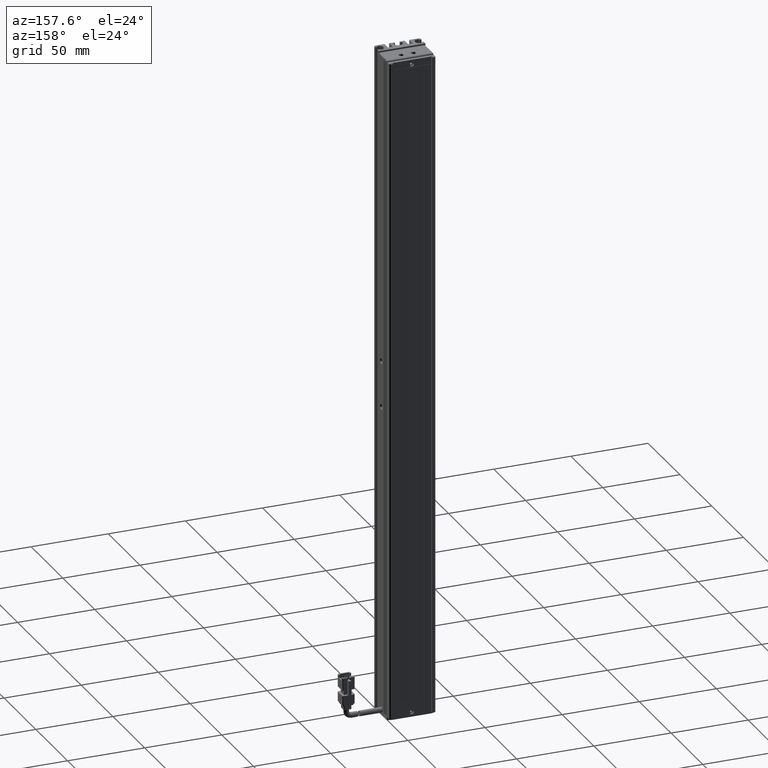
[diagram: clean part render]
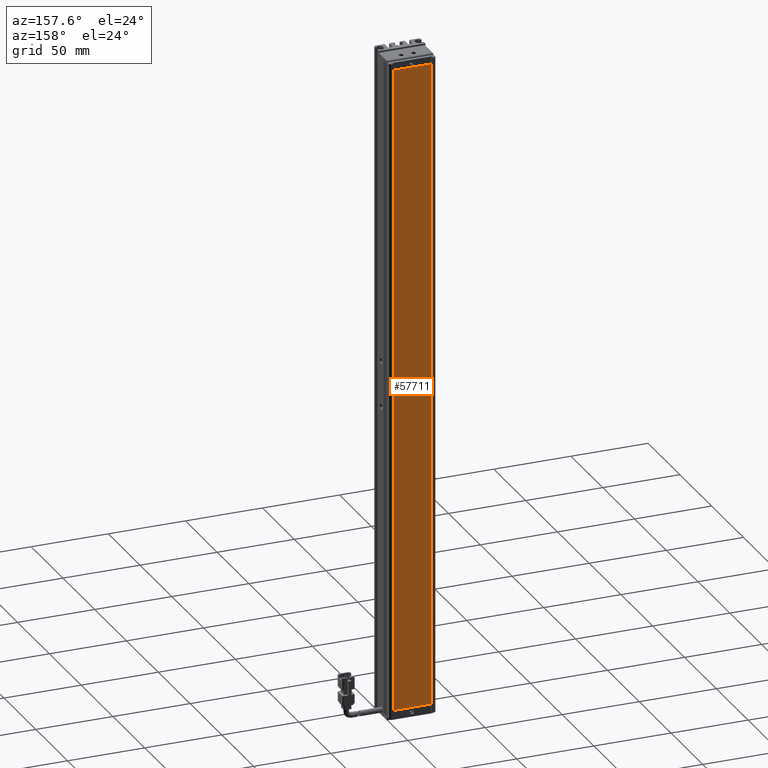
[diagram: same view with one face highlighted and labeled with its STEP entity id]
A machine part, auxiliary view. The second image highlights one B-rep face of the part: STEP entity #57711.
In plain terms, the highlighted planar face has unit normal (0, 1, 0).
Its self-contained STEP definition (entity closure, byte-faithful):
#881 = VECTOR ( 'NONE', #24290, 1000.000000000000000 ) ;
#1264 = VERTEX_POINT ( 'NONE', #64923 ) ;
#4129 = EDGE_CURVE ( 'NONE', #33001, #43321, #76198, .T. ) ;
#4140 = CARTESIAN_POINT ( 'NONE',  ( 0.0000000000000000000, 34.29594479660387000, 0.0000000000000000000 ) ) ;
#8218 = ORIENTED_EDGE ( 'NONE', *, *, #68536, .T. ) ;
#10288 = DIRECTION ( 'NONE',  ( 0.0000000000000000000, -0.0000000000000000000, 1.000000000000000000 ) ) ;
#13295 = LINE ( 'NONE', #47732, #76824 ) ;
#16367 = FACE_OUTER_BOUND ( 'NONE', #63537, .T. ) ;
#17087 = DIRECTION ( 'NONE',  ( 0.0000000000000000000, 0.0000000000000000000, 1.000000000000000000 ) ) ;
#19615 = EDGE_CURVE ( 'NONE', #49086, #33001, #13295, .T. ) ;
#24290 = DIRECTION ( 'NONE',  ( -1.000000000000000000, 0.0000000000000000000, 0.0000000000000000000 ) ) ;
#26245 = ORIENTED_EDGE ( 'NONE', *, *, #4129, .T. ) ;
#27107 = VECTOR ( 'NONE', #76625, 1000.000000000000000 ) ;
#31556 = LINE ( 'NONE', #79662, #881 ) ;
#31765 = ORIENTED_EDGE ( 'NONE', *, *, #19615, .T. ) ;
#33001 = VERTEX_POINT ( 'NONE', #42971 ) ;
#39619 = CARTESIAN_POINT ( 'NONE',  ( 53.32537974683541600, 34.29594479660387000, 95.14999999999993500 ) ) ;
#42971 = CARTESIAN_POINT ( 'NONE',  ( 28.52537974683541600, 34.29594479660387000, 95.14999999999993500 ) ) ;
#43321 = VERTEX_POINT ( 'NONE', #39619 ) ;
#45233 = DIRECTION ( 'NONE',  ( 0.0000000000000000000, 0.0000000000000000000, -1.000000000000000000 ) ) ;
#46781 = PLANE ( 'NONE',  #68431 ) ;
#47046 = DIRECTION ( 'NONE',  ( 0.0000000000000000000, 1.000000000000000000, 0.0000000000000000000 ) ) ;
#47732 = CARTESIAN_POINT ( 'NONE',  ( 28.52537974683541600, 34.29594479660387000, -324.8500000000000800 ) ) ;
#49086 = VERTEX_POINT ( 'NONE', #50186 ) ;
#50186 = CARTESIAN_POINT ( 'NONE',  ( 28.52537974683541600, 34.29594479660387000, -324.8500000000000800 ) ) ;
#55721 = EDGE_CURVE ( 'NONE', #1264, #49086, #31556, .T. ) ;
#57108 = CARTESIAN_POINT ( 'NONE',  ( 53.32537974683541600, 34.29594479660387000, 95.14999999999993500 ) ) ;
#57711 = ADVANCED_FACE ( 'NONE', ( #16367 ), #46781, .T. ) ;
#61624 = ORIENTED_EDGE ( 'NONE', *, *, #55721, .T. ) ;
#62190 = LINE ( 'NONE', #57108, #76679 ) ;
#63537 = EDGE_LOOP ( 'NONE', ( #8218, #61624, #31765, #26245 ) ) ;
#64923 = CARTESIAN_POINT ( 'NONE',  ( 53.32537974683541600, 34.29594479660387000, -324.8500000000000800 ) ) ;
#68431 = AXIS2_PLACEMENT_3D ( 'NONE', #4140, #47046, #10288 ) ;
#68536 = EDGE_CURVE ( 'NONE', #43321, #1264, #62190, .T. ) ;
#76198 = LINE ( 'NONE', #79739, #27107 ) ;
#76625 = DIRECTION ( 'NONE',  ( 1.000000000000000000, 0.0000000000000000000, 0.0000000000000000000 ) ) ;
#76679 = VECTOR ( 'NONE', #45233, 1000.000000000000000 ) ;
#76824 = VECTOR ( 'NONE', #17087, 1000.000000000000000 ) ;
#79662 = CARTESIAN_POINT ( 'NONE',  ( 53.32537974683541600, 34.29594479660387000, -324.8500000000000800 ) ) ;
#79739 = CARTESIAN_POINT ( 'NONE',  ( 28.52537974683541600, 34.29594479660387000, 95.14999999999993500 ) ) ;